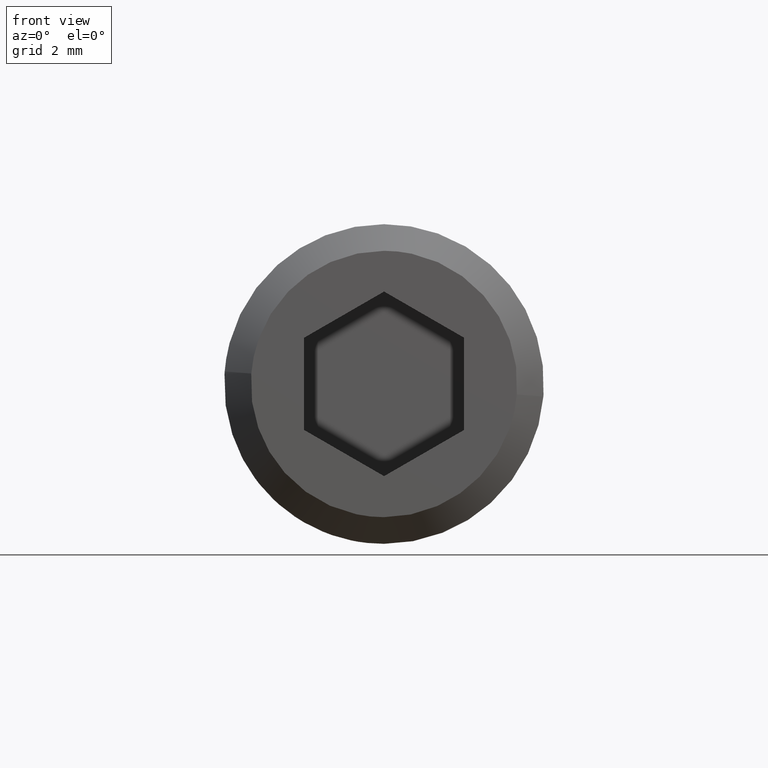
[diagram: clean part render]
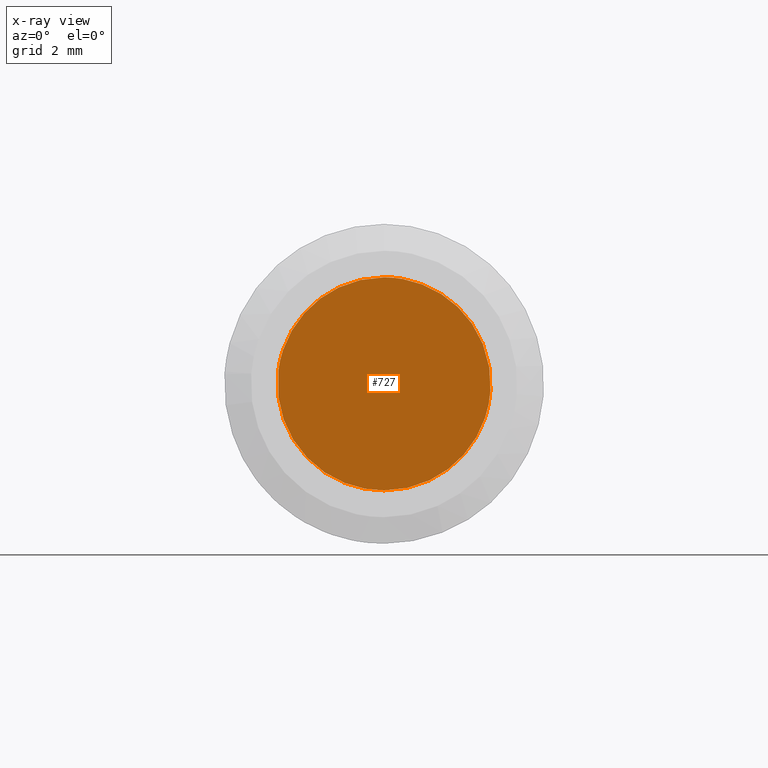
[diagram: x-ray — body ghosted, one internal face saturated and labeled with its STEP entity id]
A machine part, front view, then the same camera in x-ray: the body is ghosted and one INTERNAL B-rep face — a face not visible from any outside direction — is saturated and labeled: STEP entity #727.
In plain terms, the highlighted face is a freeform B-spline surface patch.
Its self-contained STEP definition (entity closure, byte-faithful):
#70=CARTESIAN_POINT('',(-1.986019104783265,-3.999999999999999,0.236068031371640));
#71=VERTEX_POINT('',#70);
#72=CARTESIAN_POINT('',(0.0,-4.0,-2.0));
#73=VERTEX_POINT('',#72);
#74=CARTESIAN_POINT('',(-1.986019104783265,-3.999999999999999,0.236068031371640));
#75=CARTESIAN_POINT('',(-2.0,-4.0,0.118447796732095));
#76=CARTESIAN_POINT('',(-2.0,-4.0,0.0));
#77=CARTESIAN_POINT('',(-2.000000000000000,-4.000000000000000,-2.000000000000000));
#78=CARTESIAN_POINT('',(0.0,-4.0,-2.0));
#86=(BOUNDED_CURVE()B_SPLINE_CURVE(2,(#74,#75,#76,#77,#78),.UNSPECIFIED.,.F.,.U.)B_SPLINE_CURVE_WITH_KNOTS((3,2,3),(0.229562548050281,0.250000000000000,0.500000000000000),.UNSPECIFIED.)CURVE()GEOMETRIC_REPRESENTATION_ITEM()RATIONAL_B_SPLINE_CURVE((0.956026900278876,0.976056035656406,1.0,0.707106781186548,1.0))REPRESENTATION_ITEM(''));
#87=EDGE_CURVE('',#71,#73,#86,.T.);
#89=CARTESIAN_POINT('',(1.996269779898336,-3.999999999999991,-0.122094086079775));
#90=VERTEX_POINT('',#89);
#91=CARTESIAN_POINT('',(0.0,-4.0,-2.0));
#92=CARTESIAN_POINT('',(1.881414959869414,-4.0,-2.0));
#93=CARTESIAN_POINT('',(1.996269779898336,-3.999999999999992,-0.122094086079775));
#101=(BOUNDED_CURVE()B_SPLINE_CURVE(2,(#91,#92,#93),.UNSPECIFIED.,.F.,.U.)B_SPLINE_CURVE_WITH_KNOTS((3,3),(0.500000000000000,0.739333220939945),.UNSPECIFIED.)CURVE()GEOMETRIC_REPRESENTATION_ITEM()RATIONAL_B_SPLINE_CURVE((1.0,0.719603690199634,0.976072596112838))REPRESENTATION_ITEM(''));
#102=EDGE_CURVE('',#73,#90,#101,.T.);
#169=CARTESIAN_POINT('',(0.0,-4.0,2.0));
#170=VERTEX_POINT('',#169);
#171=CARTESIAN_POINT('',(0.0,-4.0,2.0));
#172=CARTESIAN_POINT('',(-1.776349840831931,-4.0,2.0));
#173=CARTESIAN_POINT('',(-1.986019104783266,-4.000000000000000,0.236068031371640));
#181=(BOUNDED_CURVE()B_SPLINE_CURVE(2,(#171,#172,#173),.UNSPECIFIED.,.F.,.U.)B_SPLINE_CURVE_WITH_KNOTS((3,3),(0.0,0.229562548050281),.UNSPECIFIED.)CURVE()GEOMETRIC_REPRESENTATION_ITEM()RATIONAL_B_SPLINE_CURVE((1.0,0.731050745530141,0.956026900278876))REPRESENTATION_ITEM(''));
#182=EDGE_CURVE('',#170,#71,#181,.T.);
#216=CARTESIAN_POINT('',(1.996269779898336,-3.999999999999992,-0.122094086079775));
#217=CARTESIAN_POINT('',(2.0,-4.0,-0.061104025906355));
#218=CARTESIAN_POINT('',(2.0,-4.0,0.0));
#219=CARTESIAN_POINT('',(2.000000000000000,-4.000000000000000,2.000000000000000));
#220=CARTESIAN_POINT('',(0.0,-4.0,2.0));
#228=(BOUNDED_CURVE()B_SPLINE_CURVE(2,(#216,#217,#218,#219,#220),.UNSPECIFIED.,.F.,.U.)B_SPLINE_CURVE_WITH_KNOTS((3,2,3),(0.739333220939945,0.750000000000000,1.0),.UNSPECIFIED.)CURVE()GEOMETRIC_REPRESENTATION_ITEM()RATIONAL_B_SPLINE_CURVE((0.976072596112838,0.987503090986914,1.0,0.707106781186548,1.0))REPRESENTATION_ITEM(''));
#229=EDGE_CURVE('',#90,#170,#228,.T.);
#716=CARTESIAN_POINT('',(-2.199763729071017,-4.0,2.199799992247224));
#717=CARTESIAN_POINT('',(2.199751319383975,-4.0,2.199799992247224));
#718=CARTESIAN_POINT('',(-2.199763729071017,-4.0,-2.199800099535584));
#719=CARTESIAN_POINT('',(2.199751319383975,-4.0,-2.199800099535584));
#720=B_SPLINE_SURFACE_WITH_KNOTS('',1,1,((#716,#718),(#717,#719)),.UNSPECIFIED.,.F.,.F.,.U.,(2,2),(2,2),(0.0,4.399515048454992),(0.0,4.399600091782808),.UNSPECIFIED.);
#721=ORIENTED_EDGE('',*,*,#229,.F.);
#722=ORIENTED_EDGE('',*,*,#102,.F.);
#723=ORIENTED_EDGE('',*,*,#87,.F.);
#724=ORIENTED_EDGE('',*,*,#182,.F.);
#725=EDGE_LOOP('',(#721,#722,#723,#724));
#726=FACE_OUTER_BOUND('',#725,.T.);
#727=ADVANCED_FACE('',(#726),#720,.T.);